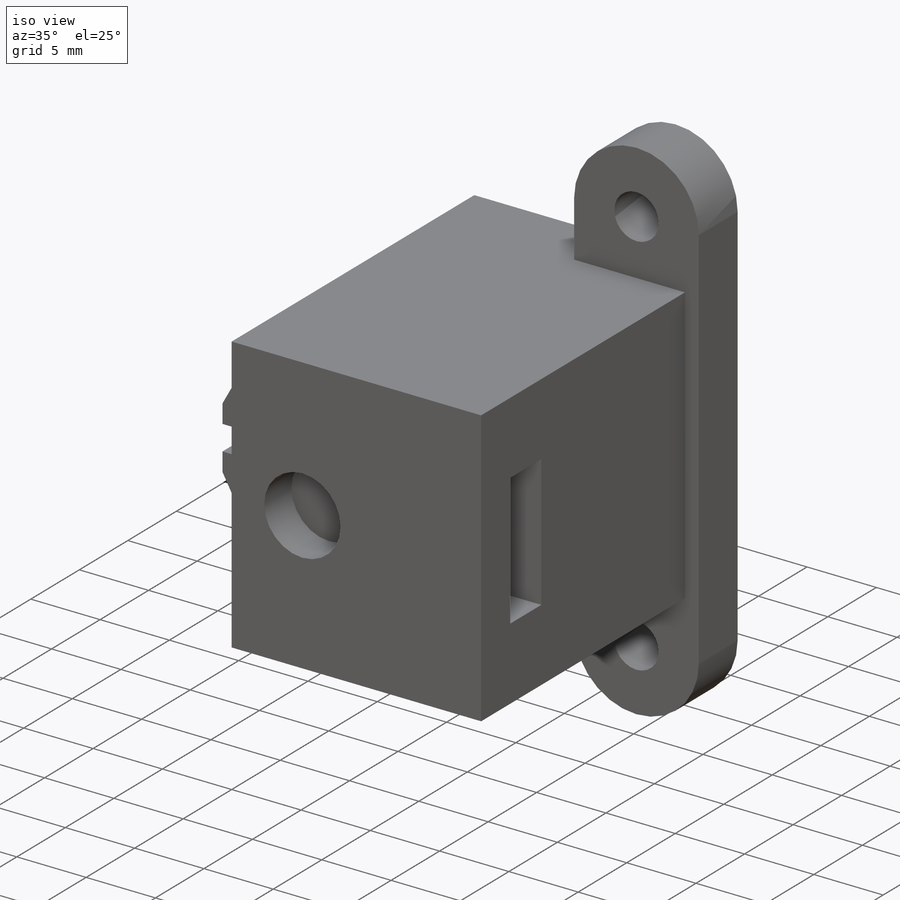
[diagram: iso view]
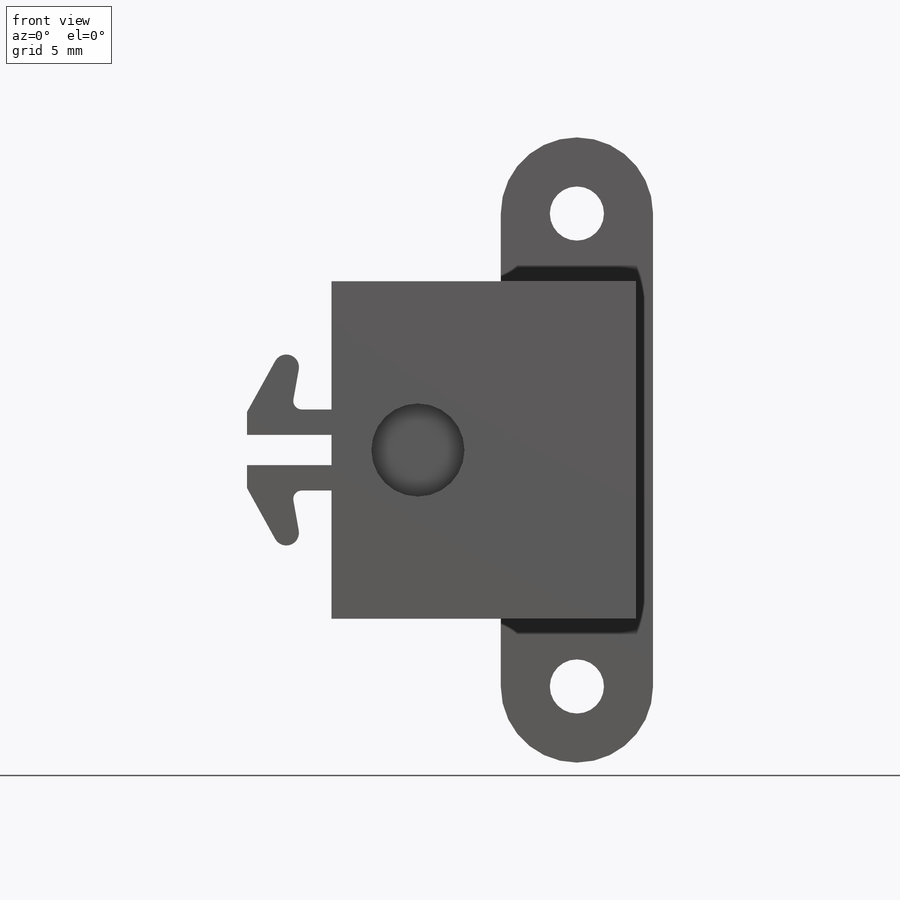
[diagram: front view]
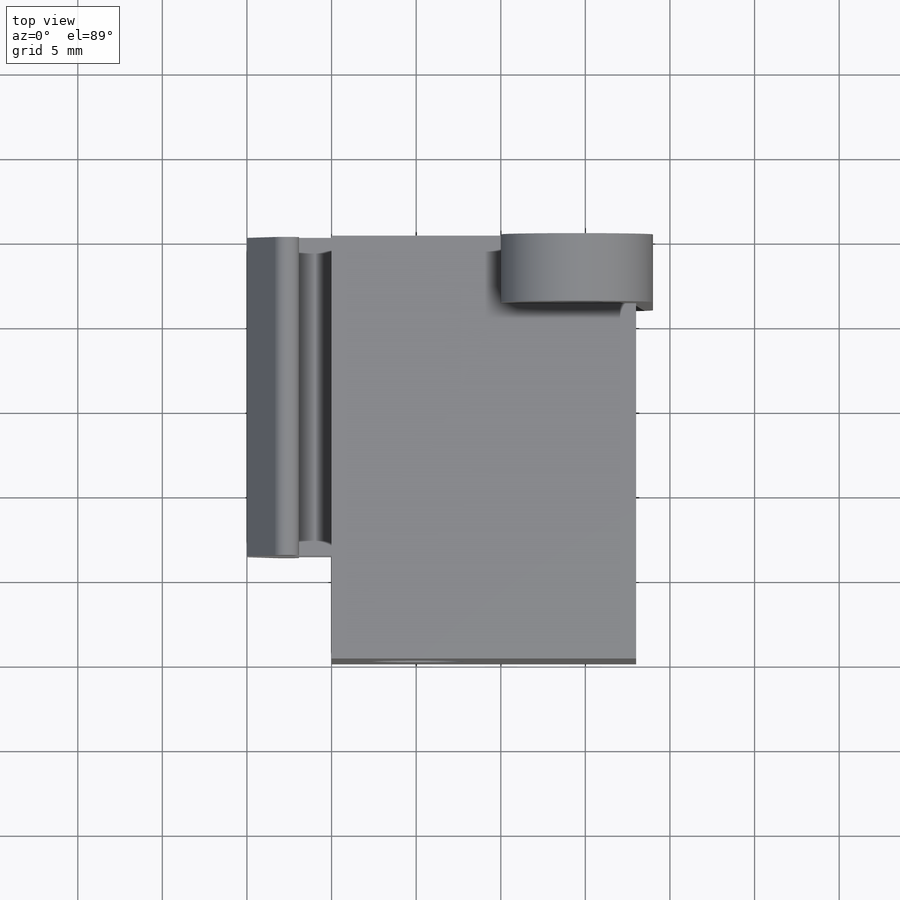
[diagram: top view]
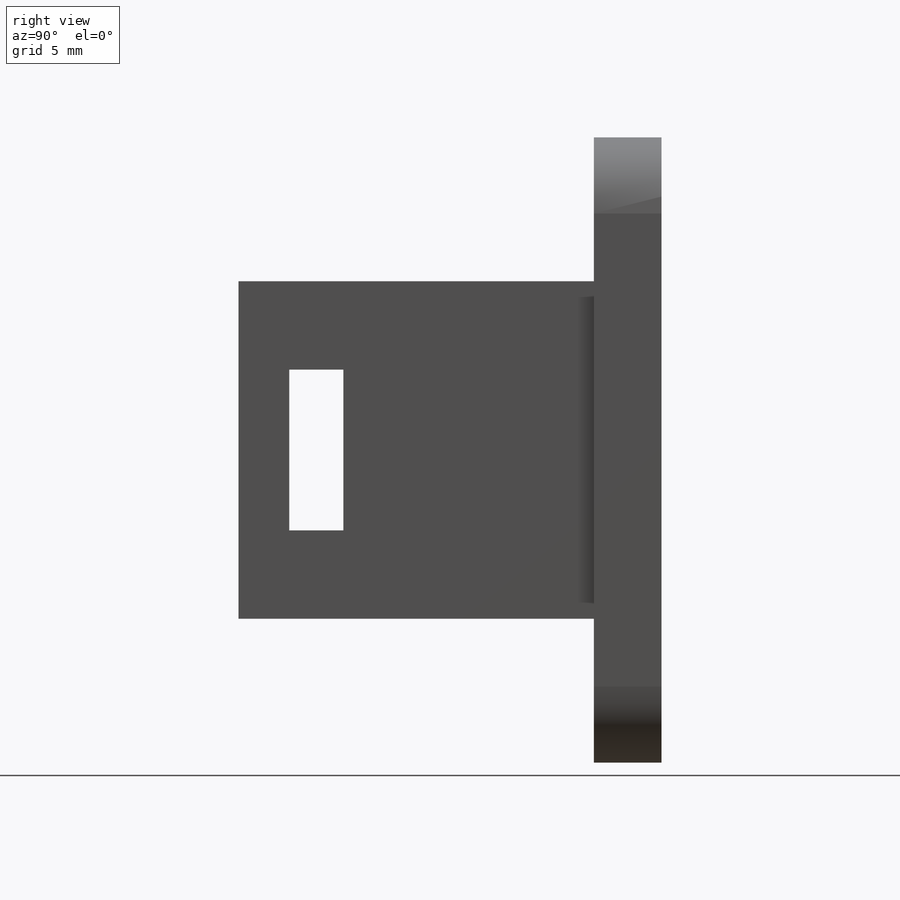
[diagram: right view]
SOLIDWORKS PART (.sldprt)
format: sldprt  version: not decoded by parser v0  size: 356,352 bytes
history: native  units: mm
features: sketch x12, cut_extrude x8, extrude x4, material x1 (+12 scaffold rows collapsed)
feature tree (37):
  scaffold x12  (default folders/planes/origin — collapsed)
  material  "ABS"
  sketch  "Sketch1"  dims[D1=0.5mm D2=0.75mm D3=19.95mm D4=~2.675093mm D5=~1.762956mm D6=2.0mm D7=1.5mm D8=~7.579239mm D9=5.0mm D10=1.35mm D11=18.0mm]
  extrude  "Boss-Extrude1"  Depth=25mm
  sketch  "Sketch2"  dims[D1=3.2mm D2=9.5mm D3=3.0mm]
  cut_extrude  "Cut-Extrude1"  Depth=111mm
  sketch  "Sketch3"  dims[D2=5.5mm D1=5.1mm]
  cut_extrude  "Cut-Extrude2"  Depth=37mm
  sketch  "Sketch4"  dims[D1=9.45mm]
  cut_extrude  "Cut-Extrude3"  Depth=17mm
  sketch  "Sketch5"  dims[D2=4.4mm D1=14.5mm]
  cut_extrude  "Cut-Extrude4"  Depth=6.7mm
  sketch  "Sketch6"  dims[D1=10.4mm]
  cut_extrude  "Cut-Extrude5"  Depth=1.6mm
  sketch  "Sketch7"
  cut_extrude  "Cut-Extrude6"  [1 undecoded]
  sketch  "Sketch8"
  cut_extrude  "Cut-Extrude7"  [1 undecoded]
  sketch  "Sketch9"
  cut_extrude  "Cut-Extrude8"  Depth=18mm
  sketch  "Sketch10"
  extrude  "Boss-Extrude2"  Depth=0.2mm
  sketch  "Sketch11"
  extrude  "Boss-Extrude3"  Depth=0.2mm
  sketch  "Sketch12"  dims[D2=3.2mm D1=14.5mm D3=4.0mm D4=9.0mm D5=2.0mm D6=~8.967472mm]
  extrude  "Boss-Extrude4"  Depth=4mm
decode coverage: 17 of 24 modeling features carry decoded parameters
note: ~ marks probable driven/reference dimensions
note: 2 parameter values undecoded
note: suppression state not decoded; provenance and decode notes live in map.json
